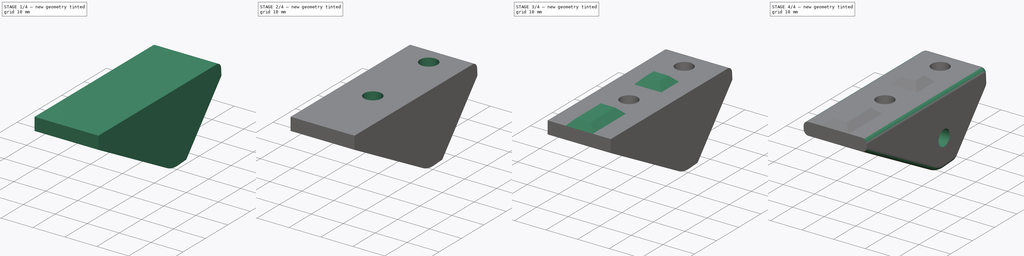
[diagram: build sequence overview — one tinted view per stage of 4, left to right]
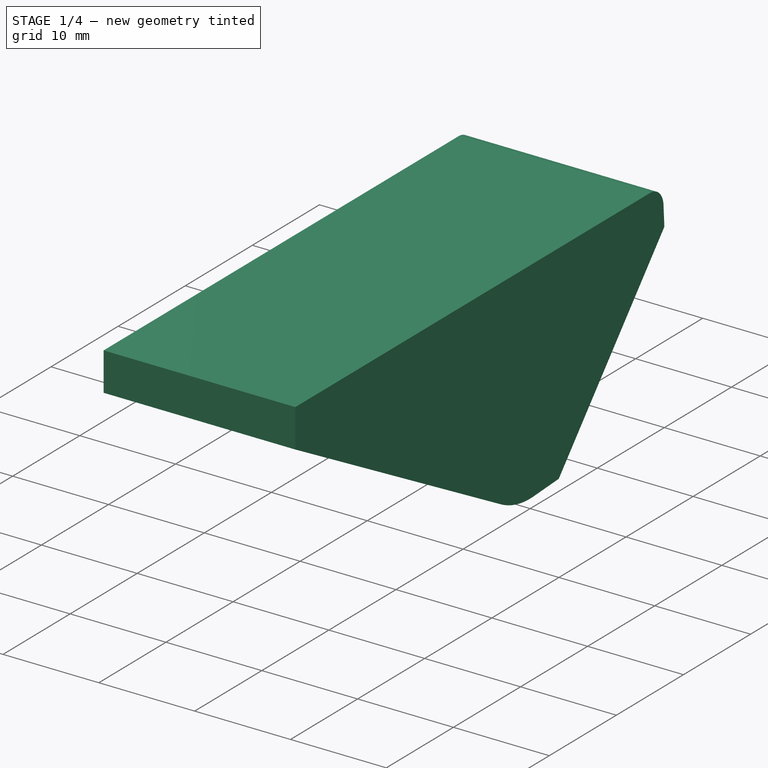
[diagram: stage 1 of 4 — iso view after this stage's code; geometry added in this stage tinted green]
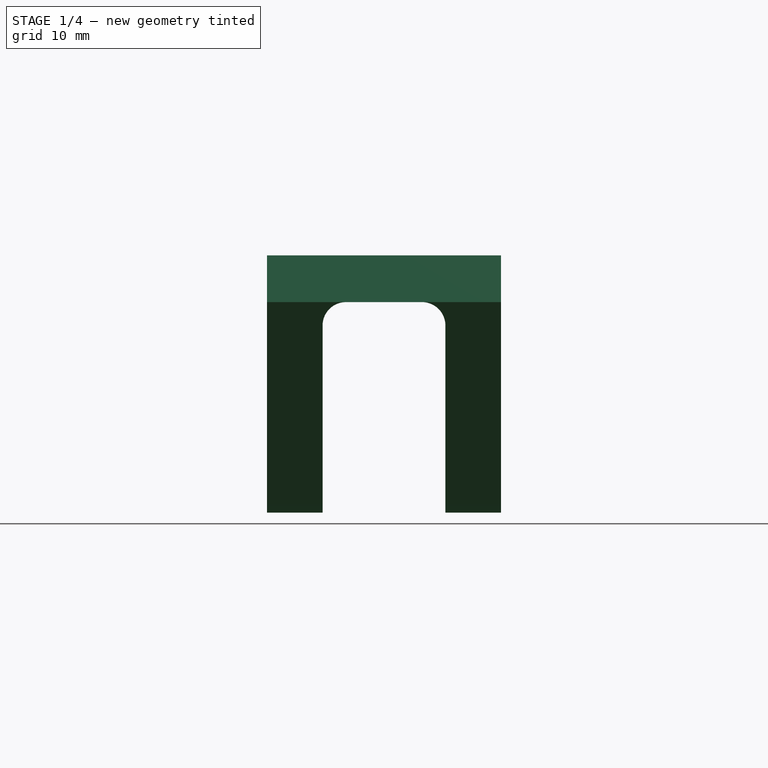
[diagram: stage 1 of 4 — front view after this stage's code; geometry added in this stage tinted green]
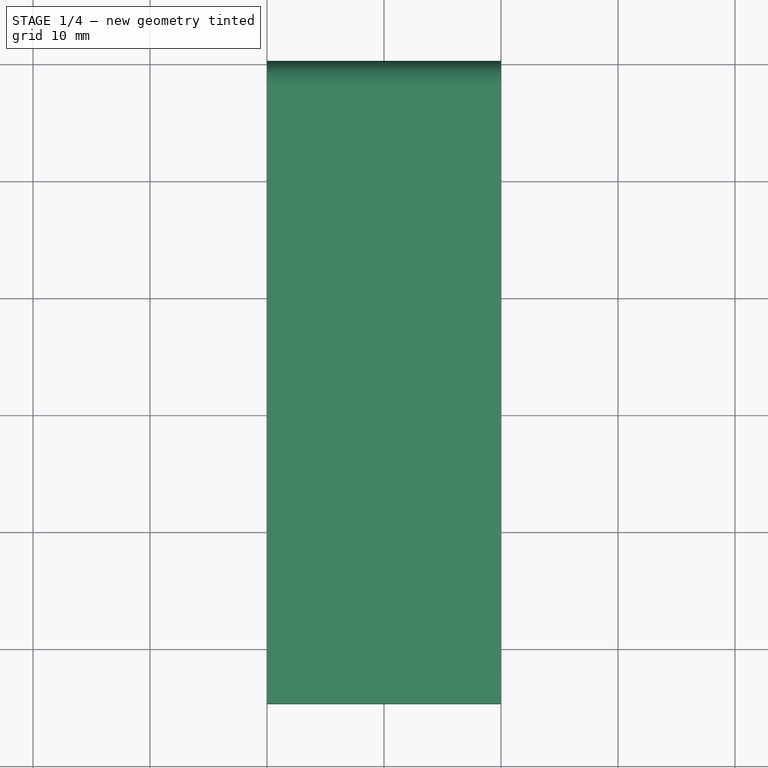
[diagram: stage 1 of 4 — top view after this stage's code; geometry added in this stage tinted green]
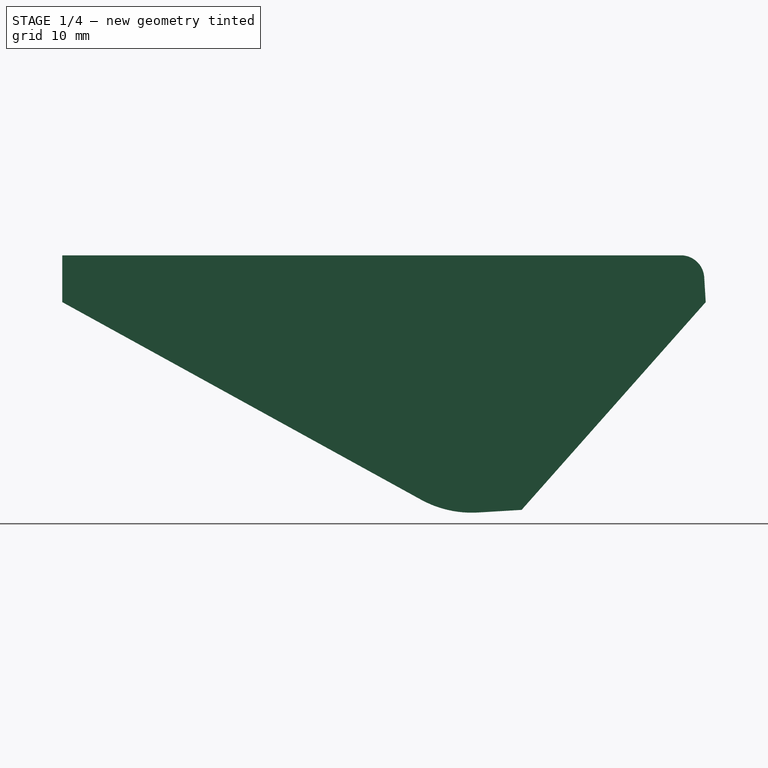
[diagram: stage 1 of 4 — right view after this stage's code; geometry added in this stage tinted green]
FCSTD DOCUMENT  (FreeCAD 1.0R39109 (Git))
Label: front-idler-mount-right
License: All rights reserved
LicenseURL: http://en.wikipedia.org/wiki/All_rights_reserved
objects: Sketcher::SketchObject×11, PartDesign::Pocket×7, PartDesign::Pad×2, App::Link×1, PartDesign::Groove×1, PartDesign::Revolution×1, PartDesign::Mirrored×1, PartDesign::Fillet×1, PartDesign::Body×1, App::Part×1
note: 61 computed .brp shape members not serialized (recipe doc carries the construction recipe); baked Part::Feature solids carry a one-line shape summary decoded from their .brp
EXTERNAL_REF file=../standard-stuff.FCStd obj=Body084

FEATURE [Sketcher::SketchObject] Sketch104
  ArcFitTolerance = 0
  AttachmentSupport = -> [YZ_Plane210]
  FullyConstrained = true
  MakeInternals = false
  MapMode = 5
  Placement = pos=(0,0,0) rot=(0.57735,0.57735,0.57735;2.0944rad)
  sketch-geometry (9):
    g0: LineSegment StartX=-35 StartY=0 StartZ=0 EndX=17.8756 EndY=0 EndZ=0
    g1: LineSegment StartX=19.872 StartY=-1.87945 StartZ=0 EndX=20 EndY=-4 EndZ=0
    g2: LineSegment StartX=20 StartY=-4 StartZ=0 EndX=4.2636 EndY=-21.7589 EndZ=0
    g3: LineSegment StartX=-4.3415 StartY=-20.8836 StartZ=0 EndX=-35 EndY=-4 EndZ=0
    g4: LineSegment StartX=-35 StartY=-4 StartZ=0 EndX=-35 EndY=0 EndZ=0
    g5: ArcOfCircle CenterX=0 CenterY=-13 CenterZ=0 NormalX=0 NormalY=0 NormalZ=1 AngleXU=0 Radius=9 StartAngle=4.20901 EndAngle=4.7727
    g6: ArcOfCircle CenterX=17.8756 CenterY=-2 CenterZ=0 NormalX=0 NormalY=0 NormalZ=1 AngleXU=0 Radius=2 StartAngle=0.0603097 EndAngle=1.5708
    g7: GeomPoint [constr] X=19.7585 Y=0 Z=0
    g8: LineSegment StartX=0.542458 StartY=-21.9836 StartZ=0 EndX=4.2636 EndY=-21.7589 EndZ=0
  constraints (24):
    c: PointOnObject(g0,g-1)
    c: PointOnObject(g7,g-1)
    c: Coincident(g1,g2)
    c: Coincident(g4,g0)
    c: Vertical(g4)
    c: PointOnObject(g5,g-2)
    c: Tangent(g5,g3) = 1.5708
    c: DistanceY(g5) = -13
    c: DistanceY(g1,g7) = 4
    c: DistanceX(g0,g-1) = 35
    c: Radius(g5) = 9
    c: Angle(g1,g2) = 2.35619
    c: DistanceX(g1) = 20
    c: PointOnObject(g7,g0)
    c: PointOnObject(g7,g1)
    c: Tangent(g0,g6) = 1.5708
    c: Tangent(g1,g6) = 1.5708
    c: Radius(g6) = 2
    c: Coincident(g8,g2)
    c: Angle(g2,g8) = 2.35619
    c: Tangent(g5,g2)
    c: Tangent(g8,g5) = -1.5708
    c: Coincident(g3,g4)
    c: Horizontal(g3,g1)
FEATURE [PartDesign::Pad] Pad100
  Direction = (1,0,0)
  Length = 20
  Length2 = 10
  Midplane = true
  Placement = pos=(0,0,0) rot=(1,1,1;2.0944rad)
  Profile = -> Sketch104
  ReferenceAxis = -> Sketch104 [N_Axis]
  Suppressed = false
  Type = 0
FEATURE [Sketcher::SketchObject] Sketch105
  ArcFitTolerance = 0
  AttachmentSupport = -> [XZ_Plane210]
  FullyConstrained = true
  MakeInternals = false
  MapMode = 5
  Placement = pos=(0,0,0) rot=(1,0,0;1.5708rad)
  sketch-geometry (8):
    g0: LineSegment StartX=-3.25 StartY=-4 StartZ=0 EndX=3.25 EndY=-4 EndZ=0
    g1: LineSegment StartX=5.25 StartY=-6 StartZ=0 EndX=5.25 EndY=-24 EndZ=0
    g2: LineSegment StartX=5.25 StartY=-24 StartZ=0 EndX=-5.25 EndY=-24 EndZ=0
    g3: LineSegment StartX=-5.25 StartY=-24 StartZ=0 EndX=-5.25 EndY=-6 EndZ=0
    g4: ArcOfCircle CenterX=-3.25 CenterY=-6 CenterZ=0 NormalX=0 NormalY=0 NormalZ=1 AngleXU=0 Radius=2 StartAngle=1.5708 EndAngle=3.14159
    g5: GeomPoint [constr] X=-5.25 Y=-4 Z=0
    g6: ArcOfCircle CenterX=3.25 CenterY=-6 CenterZ=0 NormalX=0 NormalY=0 NormalZ=1 AngleXU=0 Radius=2 StartAngle=0 EndAngle=1.5708
    g7: GeomPoint [constr] X=5.25 Y=-4 Z=0
  constraints (19):
    c: Coincident(g1,g2)
    c: Coincident(g2,g3)
    c: Horizontal(g2)
    c: Vertical(g1)
    c: Vertical(g3)
    c: DistanceY(g1) = -24
    c: DistanceY(g7) = -4
    c: Symmetric(g7,g5,g-2)
    c: DistanceX(g5,g7) = 10.5
    c: PointOnObject(g5,g0)
    c: PointOnObject(g5,g3)
    c: Tangent(g0,g4) = 1.5708
    c: Tangent(g3,g4) = 1.5708
    c: PointOnObject(g7,g0)
    c: PointOnObject(g7,g1)
    c: Tangent(g0,g6) = 1.5708
    c: Tangent(g1,g6) = 1.5708
    c: Equal(g4,g6)
    c: Radius(g4) = 2
FEATURE [Sketcher::SketchObject] Sketch106
  ArcFitTolerance = 0
  AttachmentSupport = -> [XZ_Plane210]
  FullyConstrained = true
  MakeInternals = false
  MapMode = 5
  Placement = pos=(0,0,0) rot=(1,0,0;1.5708rad)
  sketch-geometry (5):
    g0: GeomPoint [constr] X=0 Y=-13 Z=0
    g1: LineSegment StartX=5.25 StartY=-13 StartZ=0 EndX=5.25 EndY=-18 EndZ=0
    g2: LineSegment StartX=5.25 StartY=-18 StartZ=0 EndX=4.25 EndY=-17 EndZ=0
    g3: LineSegment StartX=4.25 StartY=-17 StartZ=0 EndX=4.25 EndY=-13 EndZ=0
    g4: LineSegment StartX=4.25 StartY=-13 StartZ=0 EndX=5.25 EndY=-13 EndZ=0
  constraints (14):
    c: PointOnObject(g0,g-2)
    c: DistanceY(g0) = -13
    c: Vertical(g1)
    c: Coincident(g2,g1)
    c: Coincident(g3,g2)
    c: Vertical(g3)
    c: Coincident(g4,g3)
    c: Coincident(g4,g1)
    c: Horizontal(g4)
    c: Horizontal(g3,g0)
    c: Angle(g2) = 2.35619
    c: DistanceX(g1) = 5.25
    c: DistanceY(g3,g3) = 4
    c: DistanceX(g4,g4) = 1
FEATURE [Sketcher::SketchObject] Sketch107
  ArcFitTolerance = 0
  AttachmentSupport = -> [XY_Plane210]
  FullyConstrained = true
  MakeInternals = false
  MapMode = 5
  sketch-geometry (2):
    g0: Circle CenterX=0 CenterY=12.5 CenterZ=0 NormalX=0 NormalY=0 NormalZ=1 AngleXU=0 Radius=2.75
    g1: Circle CenterX=0 CenterY=-12.5 CenterZ=0 NormalX=0 NormalY=0 NormalZ=1 AngleXU=0 Radius=2.75
  constraints (5):
    c: PointOnObject(g0,g-2)
    c: Equal(g0,g1)
    c: Diameter(g1) = 5.5
    c: Symmetric(g0,g1,g-1)
    c: DistanceY(g0) = 12.5
FEATURE [Sketcher::SketchObject] Sketch108
  ArcFitTolerance = 0
  AttachmentOffset = pos=(0,0,-4) rot=(0,0,1;0rad)
  AttachmentSupport = -> [XY_Plane210]
  FullyConstrained = true
  MakeInternals = false
  MapMode = 5
  Placement = pos=(0,0,-4) rot=(0,0,1;0rad)
  sketch-geometry (2):
    g0: Circle CenterX=0 CenterY=-12.5 CenterZ=0 NormalX=0 NormalY=0 NormalZ=1 AngleXU=0 Radius=4.5
    g1: Circle CenterX=0 CenterY=12.5 CenterZ=0 NormalX=0 NormalY=0 NormalZ=1 AngleXU=0 Radius=4.5
  constraints (5):
    c: PointOnObject(g0,g-2)
    c: Symmetric(g1,g0,g-1)
    c: Equal(g1,g0)
    c: Diameter(g0) = 9
    c: DistanceY(g1) = 12.5
FEATURE [Sketcher::SketchObject] Sketch109
  ArcFitTolerance = 0
  AttachmentSupport = -> [YZ_Plane210]
  FullyConstrained = true
  MakeInternals = false
  MapMode = 5
  Placement = pos=(0,0,0) rot=(0.57735,0.57735,0.57735;2.0944rad)
  sketch-geometry (1):
    g0: Circle CenterX=0 CenterY=-13 CenterZ=0 NormalX=0 NormalY=0 NormalZ=1 AngleXU=0 Radius=2.7
  constraints (3):
    c: PointOnObject(g0,g-2)
    c: Diameter(g0) = 5.4
    c: DistanceY(g0) = -13
FEATURE [Sketcher::SketchObject] Sketch110
  ArcFitTolerance = 0
  AttachmentSupport = -> [YZ_Plane210]
  FullyConstrained = true
  MakeInternals = false
  MapMode = 5
  Placement = pos=(0,0,0) rot=(0.57735,0.57735,0.57735;2.0944rad)
  sketch-geometry (1):
    g0: Circle CenterX=0 CenterY=-13 CenterZ=0 NormalX=0 NormalY=0 NormalZ=1 AngleXU=0 Radius=2.5
  constraints (3):
    c: PointOnObject(g0,g-2)
    c: DistanceY(g0) = -13
    c: Diameter(g0) = 5
FEATURE [Sketcher::SketchObject] Sketch111
  ArcFitTolerance = 0
  AttachmentOffset = pos=(0,0,-8) rot=(0,0,1;0rad)
  AttachmentSupport = -> [YZ_Plane210]
  FullyConstrained = true
  MakeInternals = false
  MapMode = 5
  Placement = pos=(-8,0,0) rot=(0.57735,0.57735,0.57735;2.0944rad)
  sketch-geometry (1):
    g0: Circle CenterX=0 CenterY=-13 CenterZ=0 NormalX=0 NormalY=0 NormalZ=1 AngleXU=0 Radius=5
  constraints (3):
    c: PointOnObject(g0,g-2)
    c: Diameter(g0) = 10
    c: DistanceY(g0) = -13
FEATURE [Sketcher::SketchObject] Sketch370
  ArcFitTolerance = 0
  AttachmentSupport = -> [XZ_Plane210]
  FullyConstrained = true
  MakeInternals = false
  MapMode = 5
  Placement = pos=(0,0,0) rot=(1,0,0;1.5708rad)
  sketch-geometry (7):
    g0: LineSegment StartX=-4.27574 StartY=0 StartZ=0 EndX=4.27574 EndY=0 EndZ=0
    g1: LineSegment StartX=4.27574 StartY=0 StartZ=0 EndX=2.27574 EndY=2 EndZ=0
    g2: LineSegment StartX=2.27574 StartY=2 StartZ=0 EndX=-2.27574 EndY=2 EndZ=0
    g3: LineSegment StartX=-2.27574 StartY=2 StartZ=0 EndX=-4.27574 EndY=0 EndZ=0
    g4: GeomPoint [constr] X=0 Y=2 Z=0
    g5: GeomPoint [constr] X=2.7 Y=2 Z=0
    g6: GeomPoint [constr] X=-2.7 Y=2 Z=0
  constraints (16):
    c: PointOnObject(g0,g-1)
    c: PointOnObject(g0,g-1)
    c: Coincident(g0,g1)
    c: Coincident(g1,g2)
    c: Coincident(g2,g3)
    c: Coincident(g3,g0)
    c: Perpendicular(g1,g3)
    c: Angle(g1) = 2.35619
    c: Symmetric(g2,g1,g-2)
    c: DistanceY(g1,g1) = 2
    c: PointOnObject(g4,g2)
    c: PointOnObject(g4,g-2)
    c: Symmetric(g6,g5,g4)
    c: Horizontal(g5,g4)
    c: DistanceX(g6,g5) = 5.4
    c: Distance(g5,g1) = 0.3
FEATURE [Sketcher::SketchObject] Sketch371
  ArcFitTolerance = 0
  AttachmentSupport = -> [YZ_Plane210]
  FullyConstrained = true
  MakeInternals = false
  MapMode = 5
  Placement = pos=(0,0,0) rot=(0.57735,0.57735,0.57735;2.0944rad)
  sketch-geometry (11):
    g0: LineSegment StartX=-22 StartY=2 StartZ=0 EndX=-2 EndY=2 EndZ=0
    g1: LineSegment StartX=-2 StartY=2 StartZ=0 EndX=-4 EndY=0 EndZ=0
    g2: LineSegment StartX=-4 StartY=0 StartZ=0 EndX=-20 EndY=0 EndZ=0
    g3: LineSegment StartX=-20 StartY=0 StartZ=0 EndX=-22 EndY=2 EndZ=0
    g4: GeomPoint [constr] X=-12 Y=0 Z=0
    g5: LineSegment StartX=4 StartY=0 StartZ=0 EndX=4 EndY=2 EndZ=0
    g6: LineSegment StartX=4 StartY=2 StartZ=0 EndX=2 EndY=2 EndZ=0
    g7: LineSegment StartX=2 StartY=2 StartZ=0 EndX=4 EndY=0 EndZ=0
    g8: LineSegment StartX=-35 StartY=0 StartZ=0 EndX=-35 EndY=2 EndZ=0
    g9: LineSegment StartX=-35 StartY=2 StartZ=0 EndX=-33 EndY=2 EndZ=0
    g10: LineSegment StartX=-33 StartY=2 StartZ=0 EndX=-35 EndY=0 EndZ=0
  constraints (30):
    c: Coincident(g0,g1)
    c: Coincident(g1,g2)
    c: Coincident(g2,g3)
    c: Coincident(g3,g0)
    c: Horizontal(g0)
    c: Horizontal(g2)
    c: PointOnObject(g1,g-1)
    c: DistanceY(g1,g1) = 2
    c: Symmetric(g1,g2,g4)
    c: DistanceX(g4) = -12
    c: DistanceX(g2,g2) = 16
    c: Angle(g1) = -2.35619
    c: PointOnObject(g5,g-1)
    c: Coincident(g5,g6)
    c: Horizontal(g6)
    c: Coincident(g6,g7)
    c: Coincident(g7,g5)
    c: Symmetric(g6,g0,g-2)
    c: DistanceX(g6,g6) = 2
    c: Vertical(g5)
    c: Angle(g3) = 2.35619
    c: PointOnObject(g8,g-1)
    c: Vertical(g8)
    c: Coincident(g8,g9)
    c: Horizontal(g9)
    c: Coincident(g9,g10)
    c: Coincident(g10,g8)
    c: Equal(g9,g8)
    c: DistanceX(g9,g9) = 2
    c: DistanceX(g8) = -35
FEATURE [App::Link] Link  label="idler"
  LinkPlacement = pos=(0,0,-13) rot=(0,1,0;1.5708rad)
  LinkedObject = -> <external ../standard-stuff.FCStd>#Body084
  Placement = pos=(0,0,-13) rot=(0,1,0;1.5708rad)
FEATURE [PartDesign::Pocket] Pocket267
  BaseFeature = -> Pad100
  Direction = (0,1,-2e-16)
  Length = 5
  Length2 = 5
  Midplane = true
  Placement = pos=(0,0,0) rot=(1,1,1;2.0944rad)
  Profile = -> Sketch105
  ReferenceAxis = -> Sketch105 [N_Axis]
  Suppressed = false
  Type = 1
FEATURE [Sketcher::SketchObject] Sketch
  ArcFitTolerance = 1e-06
  AttachmentSupport = -> [XZ_Plane210]
  FullyConstrained = true
  MakeInternals = false
  MapMode = 5
  Placement = pos=(0,0,0) rot=(1,0,0;1.5708rad)
  sketch-geometry (8):
    g0: LineSegment StartX=-4.25 StartY=-2.5 StartZ=0 EndX=4.25 EndY=-2.5 EndZ=0
    g1: LineSegment StartX=5.25 StartY=-3.5 StartZ=0 EndX=5.25 EndY=-13 EndZ=0
    g2: LineSegment StartX=5.25 StartY=-13 StartZ=0 EndX=-5.25 EndY=-13 EndZ=0
    g3: LineSegment StartX=-5.25 StartY=-13 StartZ=0 EndX=-5.25 EndY=-3.5 EndZ=0
    g4: ArcOfCircle CenterX=4.25 CenterY=-3.5 CenterZ=0 NormalX=0 NormalY=0 NormalZ=1 AngleXU=0 Radius=1 StartAngle=0 EndAngle=1.5708
    g5: GeomPoint [constr] X=5.25 Y=-2.5 Z=0
    g6: ArcOfCircle CenterX=-4.25 CenterY=-3.5 CenterZ=0 NormalX=0 NormalY=0 NormalZ=1 AngleXU=0 Radius=1 StartAngle=1.5708 EndAngle=3.14159
    g7: GeomPoint [constr] X=-5.25 Y=-2.5 Z=0
  constraints (19):
    c: Vertical(g1)
    c: Coincident(g1,g2)
    c: Horizontal(g2)
    c: Coincident(g2,g3)
    c: Vertical(g3)
    c: Symmetric(g5,g7,g-2)
    c: PointOnObject(g5,g0)
    c: PointOnObject(g5,g1)
    c: Tangent(g0,g4) = 1.5708
    c: Tangent(g1,g4) = 1.5708
    c: PointOnObject(g7,g0)
    c: PointOnObject(g7,g3)
    c: Tangent(g0,g6) = 1.5708
    c: Tangent(g3,g6) = 1.5708
    c: DistanceX(g2,g2) = 10.5
    c: Radius(g4) = 1
    c: Equal(g6,g4)
    c: DistanceY(g1) = -13
    c: DistanceY(g1,g0) = 10.5
FEATURE [PartDesign::Groove] Groove
  Angle = 360
  Angle2 = 60
  Axis = (-1,0,0)
  Base = (5.25,-2.9e-15,-13)
  BaseFeature = -> Pocket267
  Placement = pos=(0,0,0) rot=(1,1,1;2.0944rad)
  Profile = -> Sketch
  ReferenceAxis = -> Sketch [Edge4]
  Refine = true
  Suppressed = false
  Type = 0
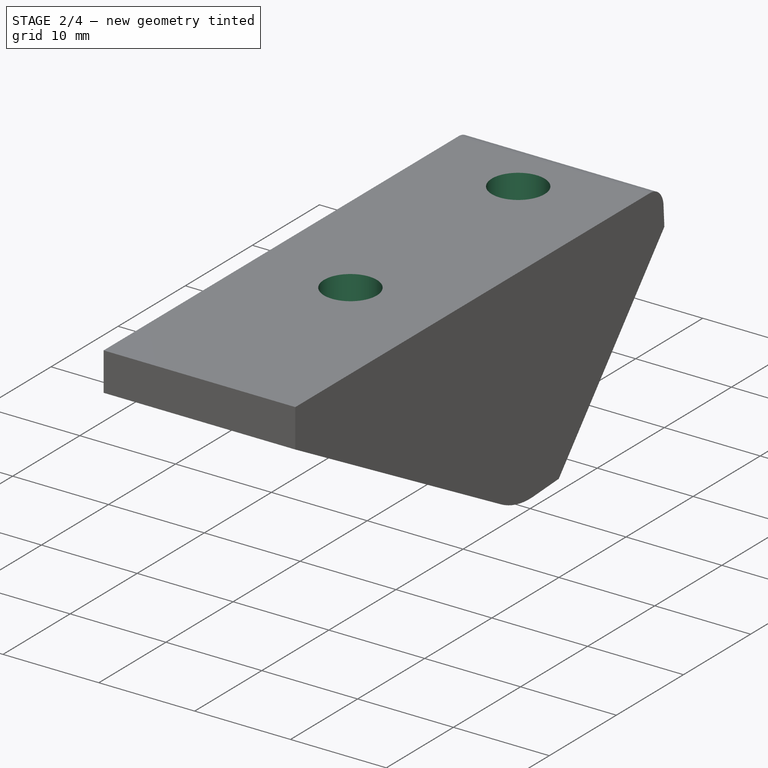
[diagram: stage 2 of 4 — iso view after this stage's code; geometry added in this stage tinted green]
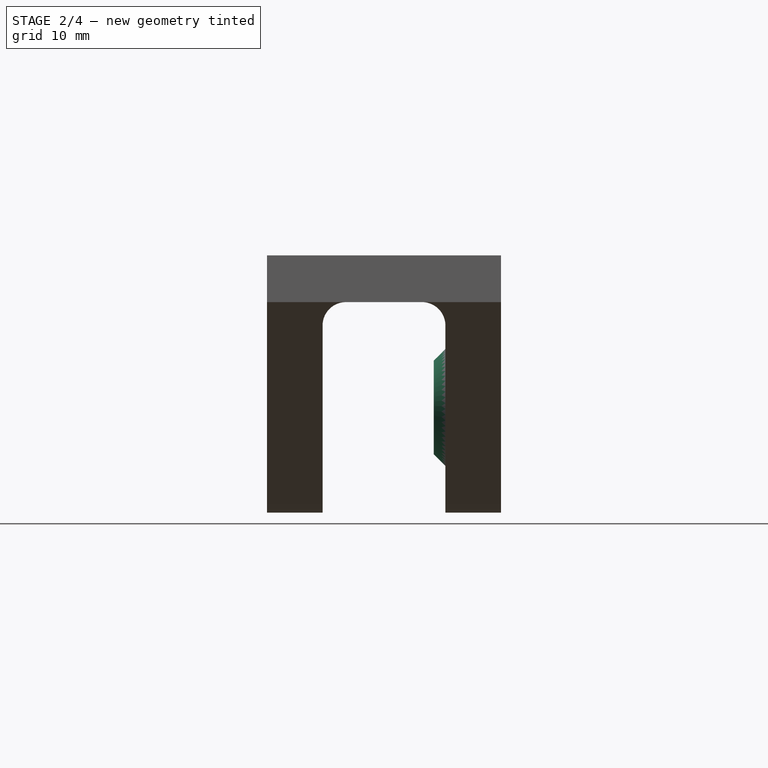
[diagram: stage 2 of 4 — front view after this stage's code; geometry added in this stage tinted green]
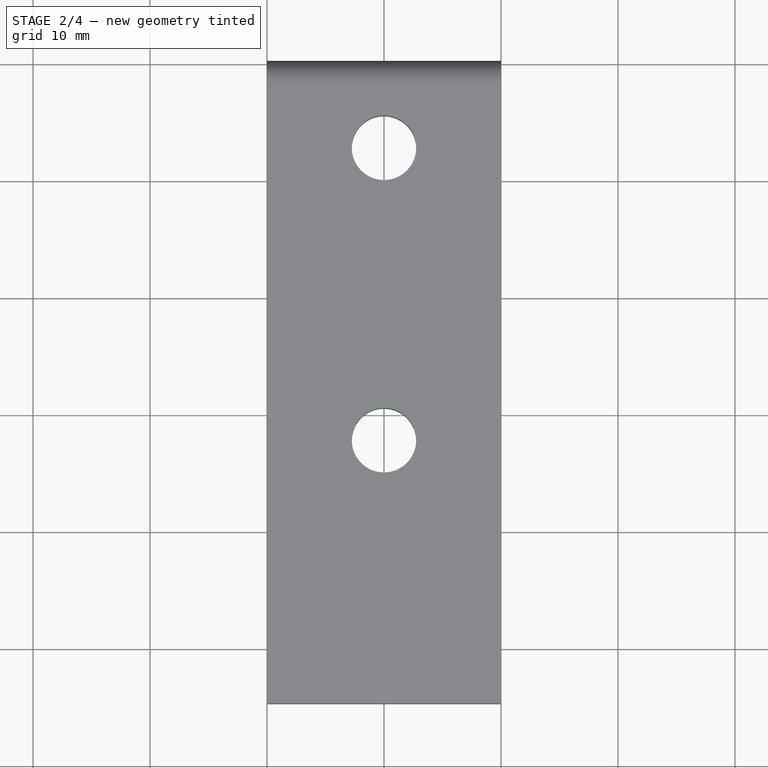
[diagram: stage 2 of 4 — top view after this stage's code; geometry added in this stage tinted green]
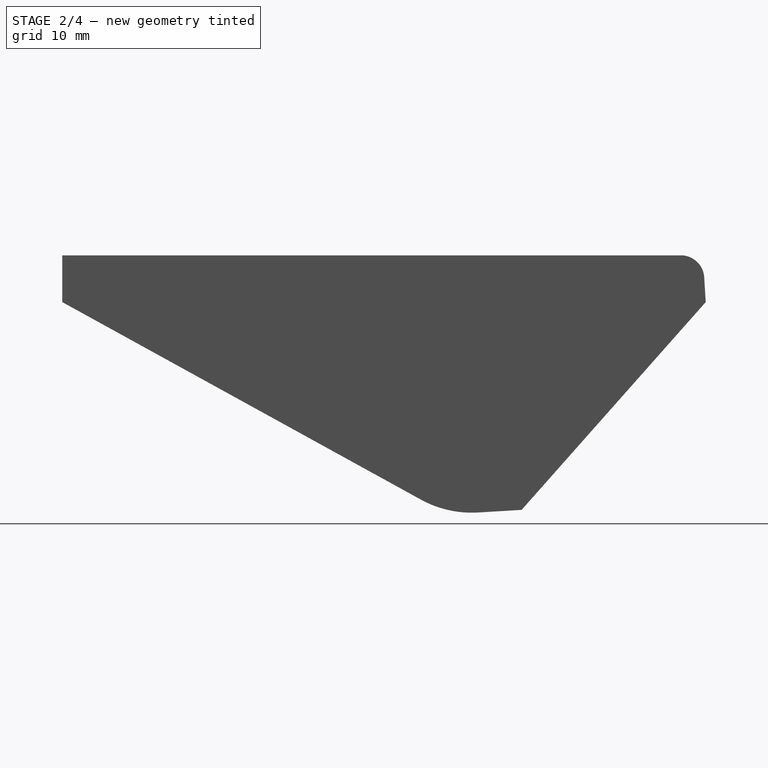
[diagram: stage 2 of 4 — right view after this stage's code; geometry added in this stage tinted green]
FEATURE [PartDesign::Pocket] Pocket
  BaseFeature = -> Groove
  Direction = (0,0,-1)
  Length = 5
  Length2 = 5
  Placement = pos=(0,0,0) rot=(1,1,1;2.0944rad)
  Profile = -> Sketch107
  ReferenceAxis = -> Sketch107 [N_Axis]
  Suppressed = false
  Type = 0
FEATURE [PartDesign::Pocket] Pocket268
  BaseFeature = -> Pocket
  Direction = (0,0,-1)
  Length = 5
  Length2 = 5
  Placement = pos=(0,0,0) rot=(1,1,1;2.0944rad)
  Profile = -> Sketch108
  ReferenceAxis = -> Sketch108 [N_Axis]
  Refine = true
  Suppressed = false
  Type = 0
FEATURE [PartDesign::Revolution] Revolution
  Angle = 360
  Angle2 = 60
  Axis = (1,0,0)
  Base = (4.25,-2.9e-15,-13)
  BaseFeature = -> Pocket268
  Placement = pos=(0,0,0) rot=(1,1,1;2.0944rad)
  Profile = -> Sketch106
  ReferenceAxis = -> Sketch106 [Edge4]
  Reversed = true
  Suppressed = false
  Type = 0
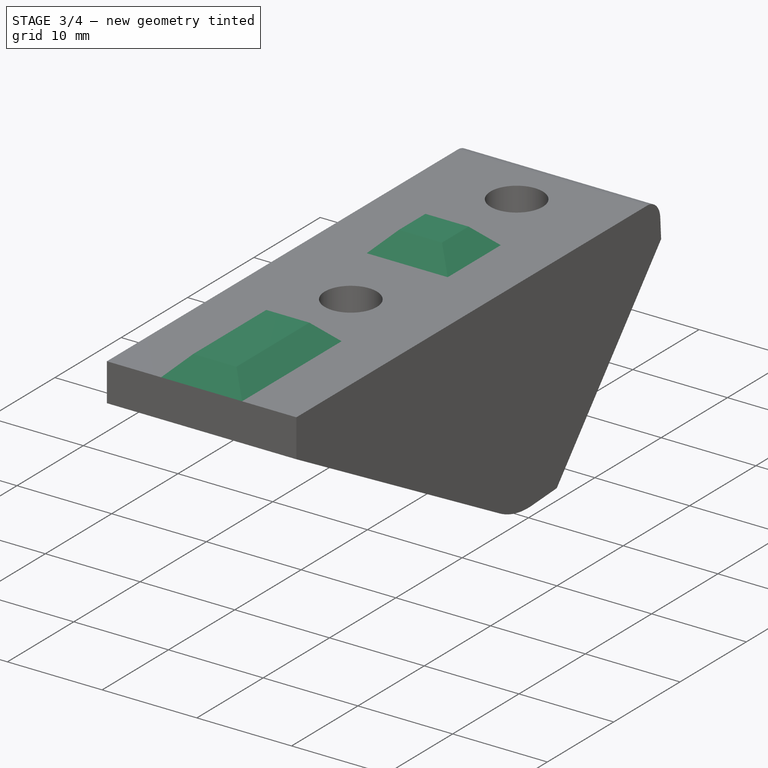
[diagram: stage 3 of 4 — iso view after this stage's code; geometry added in this stage tinted green]
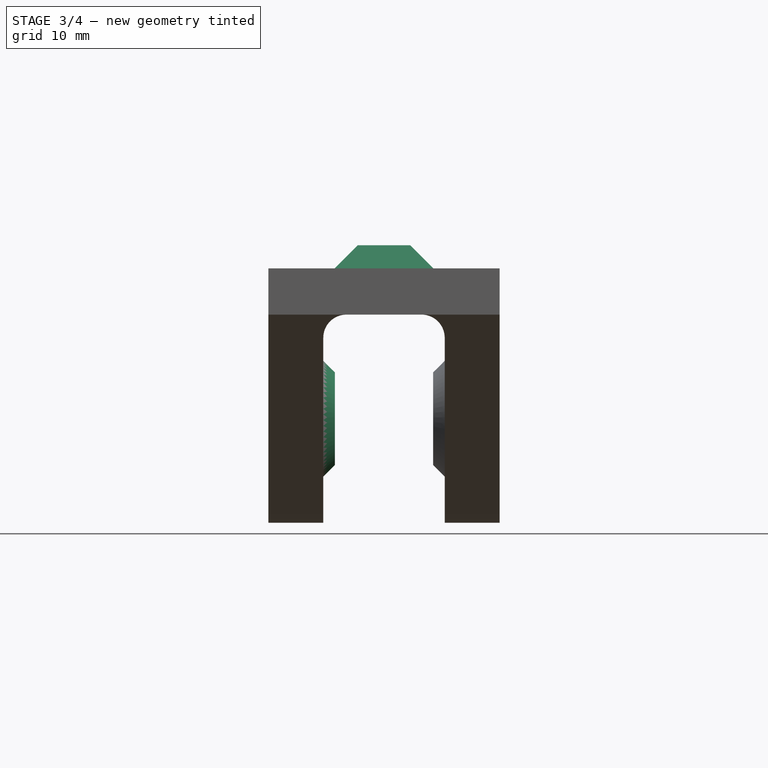
[diagram: stage 3 of 4 — front view after this stage's code; geometry added in this stage tinted green]
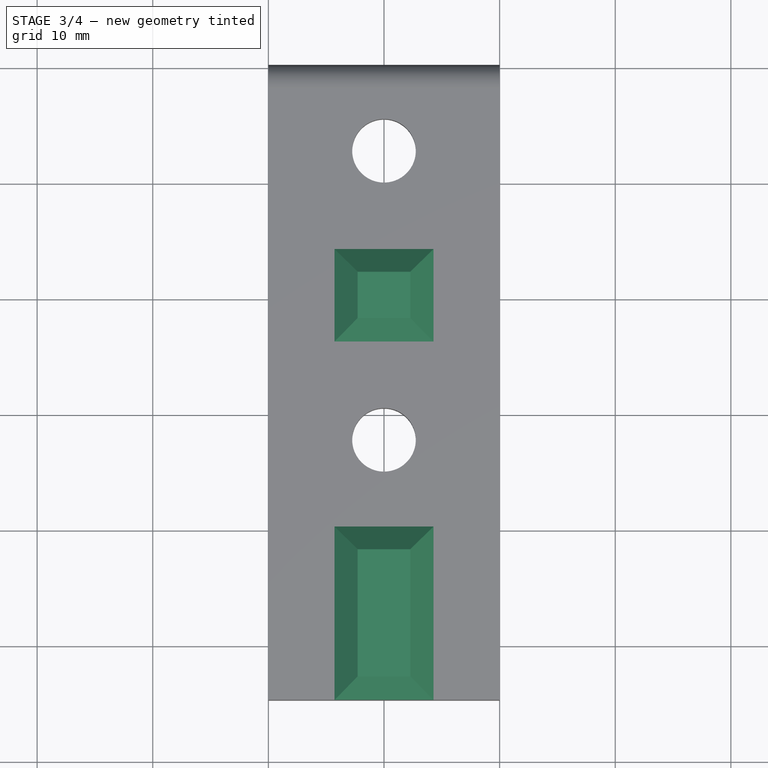
[diagram: stage 3 of 4 — top view after this stage's code; geometry added in this stage tinted green]
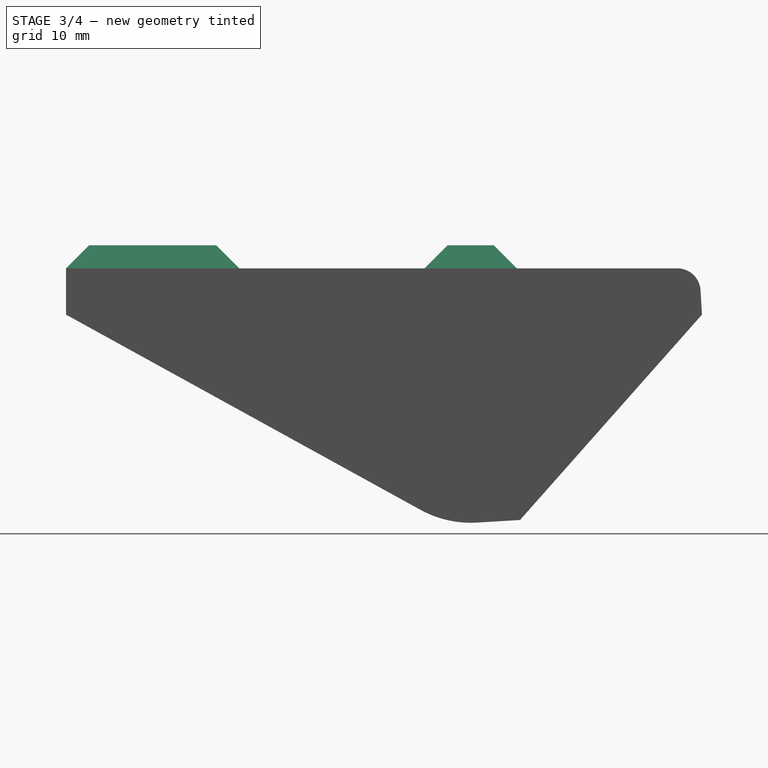
[diagram: stage 3 of 4 — right view after this stage's code; geometry added in this stage tinted green]
FEATURE [PartDesign::Mirrored] Mirrored
  BaseFeature = -> Revolution
  MirrorPlane = -> YZ_Plane210
  Originals = -> [Revolution]
  Placement = pos=(0,0,0) rot=(1,1,1;2.0944rad)
  Suppressed = false
  TransformMode = 0
FEATURE [PartDesign::Pad] Pad
  BaseFeature = -> Mirrored
  Direction = (0,-1,2e-16)
  Length = 35
  Length2 = 4
  Placement = pos=(0,0,0) rot=(1,1,1;2.0944rad)
  Profile = -> Sketch370
  ReferenceAxis = -> Sketch370 [N_Axis]
  Suppressed = false
  Type = 4
FEATURE [PartDesign::Pocket] Pocket269
  BaseFeature = -> Pad
  Direction = (-1,0,0)
  Length = 5
  Length2 = 5
  Midplane = true
  Placement = pos=(0,0,0) rot=(1,1,1;2.0944rad)
  Profile = -> Sketch371
  ReferenceAxis = -> Sketch371 [N_Axis]
  Refine = true
  Suppressed = false
  Type = 1
FEATURE [PartDesign::Pocket] Pocket270
  BaseFeature = -> Pocket269
  Direction = (-1,0,0)
  Length = 5
  Length2 = 5
  Placement = pos=(0,0,0) rot=(1,1,1;2.0944rad)
  Profile = -> Sketch111
  ReferenceAxis = -> Sketch111 [N_Axis]
  Suppressed = false
  Type = 0
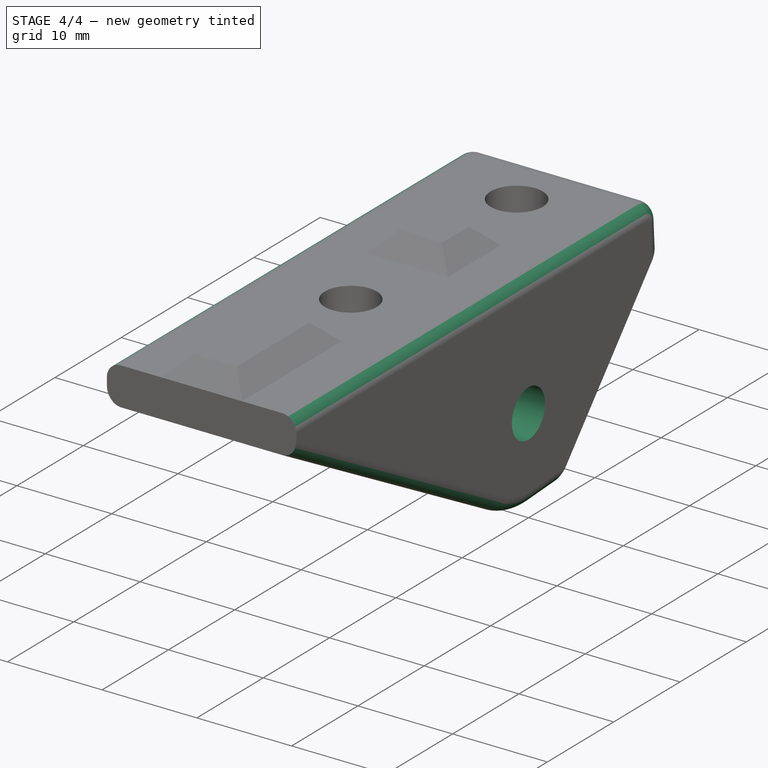
[diagram: stage 4 of 4 — iso view after this stage's code; geometry added in this stage tinted green]
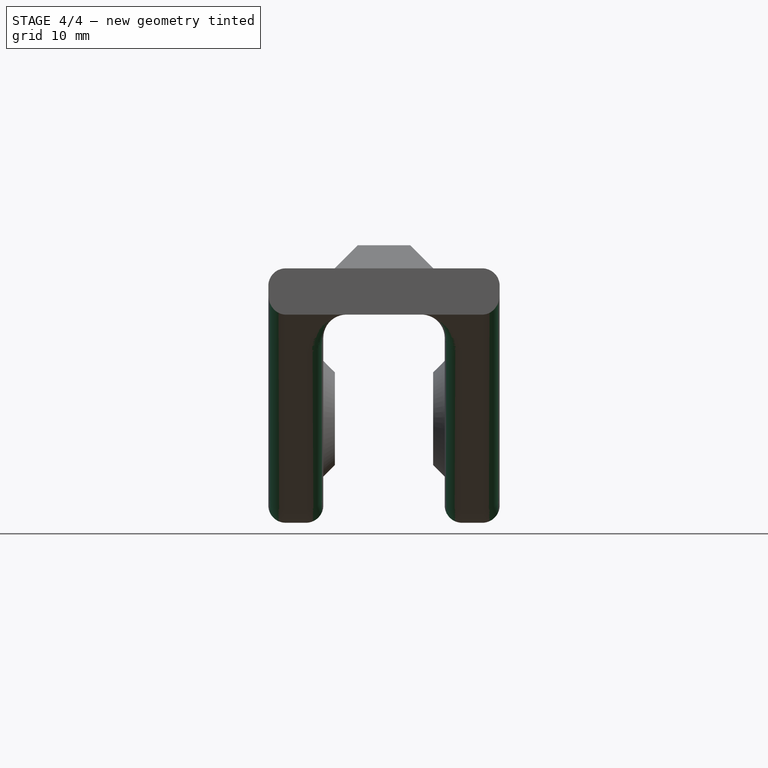
[diagram: stage 4 of 4 — front view after this stage's code; geometry added in this stage tinted green]
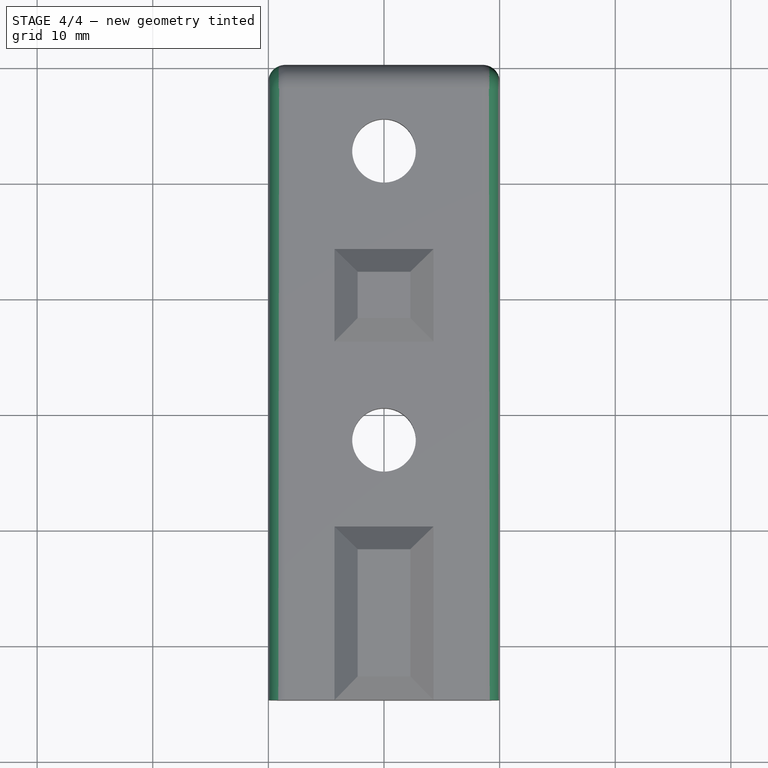
[diagram: stage 4 of 4 — top view after this stage's code; geometry added in this stage tinted green]
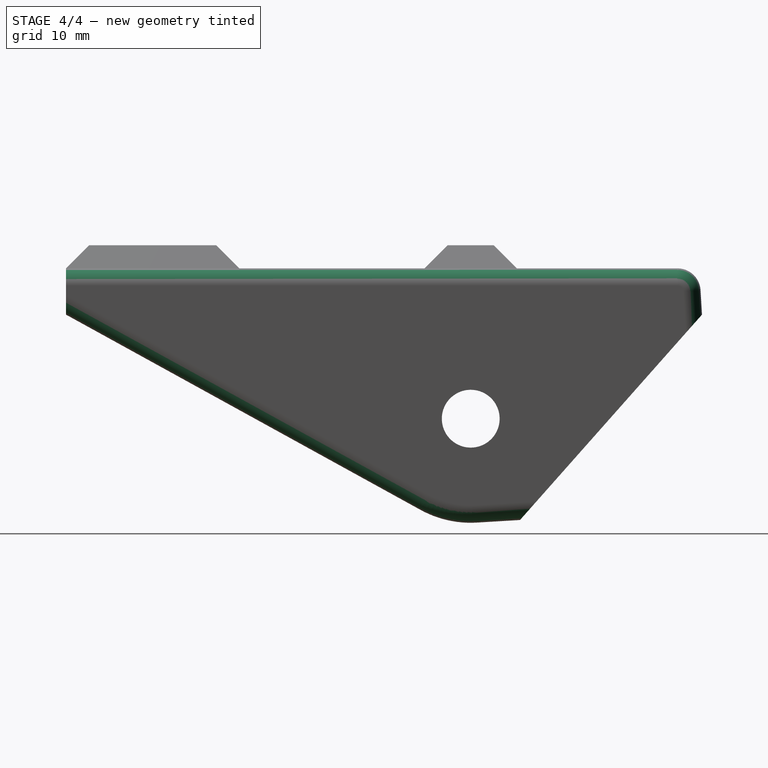
[diagram: stage 4 of 4 — right view after this stage's code; geometry added in this stage tinted green]
FEATURE [PartDesign::Pocket] Pocket271
  BaseFeature = -> Pocket270
  Direction = (-1,0,0)
  Length = 5
  Length2 = 5
  Placement = pos=(0,0,0) rot=(1,1,1;2.0944rad)
  Profile = -> Sketch109
  ReferenceAxis = -> Sketch109 [N_Axis]
  Suppressed = false
  Type = 1
FEATURE [PartDesign::Pocket] Pocket272
  BaseFeature = -> Pocket271
  Direction = (-1,0,0)
  Length = 5
  Length2 = 5
  Placement = pos=(0,0,0) rot=(1,1,1;2.0944rad)
  Profile = -> Sketch110
  ReferenceAxis = -> Sketch110 [N_Axis]
  Reversed = true
  Suppressed = false
  Type = 1
FEATURE [PartDesign::Fillet] Fillet
  Base = -> Pocket272 [Edge85,Edge5,Edge87,Edge17,Edge73,Edge42]
  BaseFeature = -> Pocket272
  Placement = pos=(0,0,0) rot=(1,1,1;2.0944rad)
  Radius = 1.5
  SupportTransform = false
  Suppressed = false
  UseAllEdges = false
FEATURE [PartDesign::Body] Body076  label="z-motion-front-idler-mount-right"
  AllowCompound = false
  Group = -> [Sketch104,Sketch105,Sketch106,Sketch107,Sketch108,Sketch109,Sketch110,Sketch111,Sketch370,Sketch371,Pad100,Pocket267,Sketch,Groove,Pocket,Pocket268,Revolution,Mirrored,Pad,Pocket269,Pocket270,Pocket271,Pocket272,Fillet]
  Origin = -> Origin210
  Tip = -> Fillet
FEATURE [App::Part] Part  label="main"
  Group = -> [Body076,Link]
  Origin = -> Origin
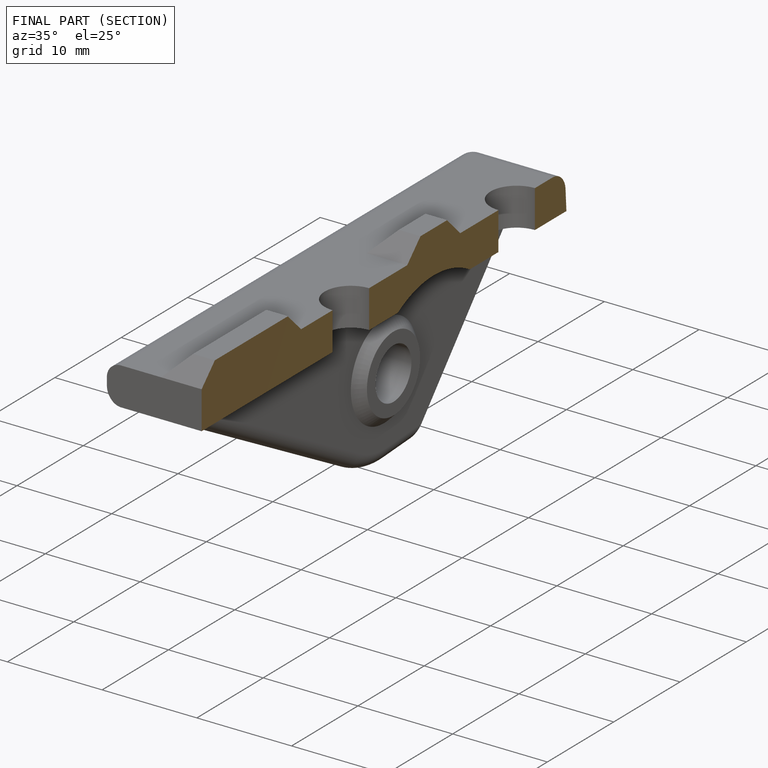
[diagram: finished part — half-section view (interior)]
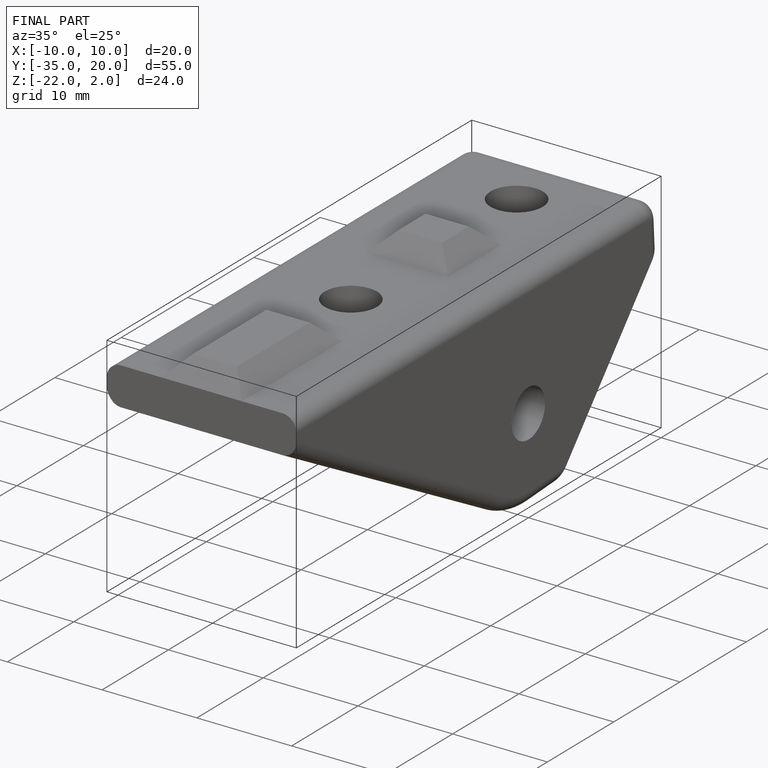
[diagram: finished part — iso view with bounding-box wireframe]
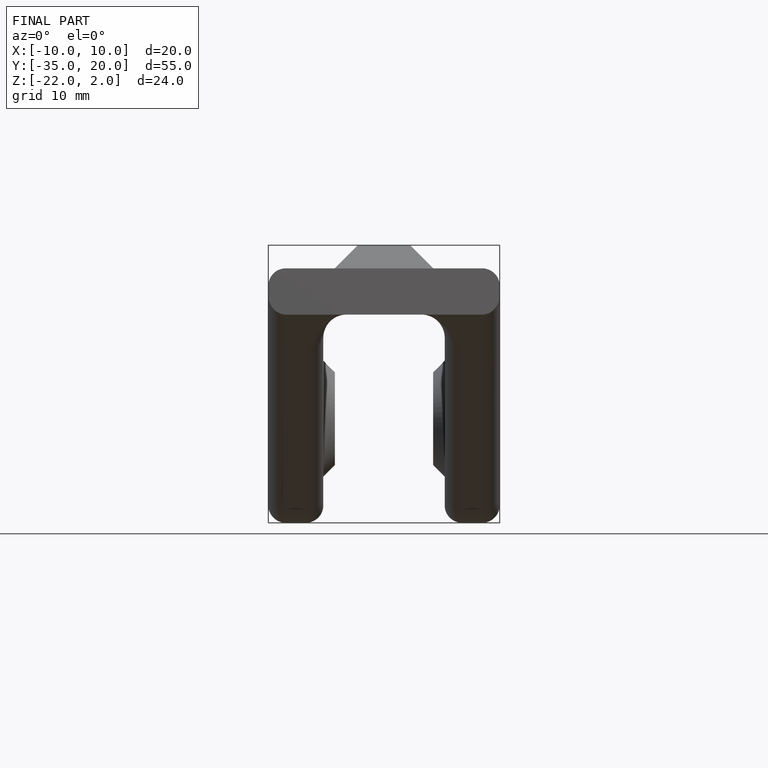
[diagram: finished part — front view with bounding-box wireframe]
